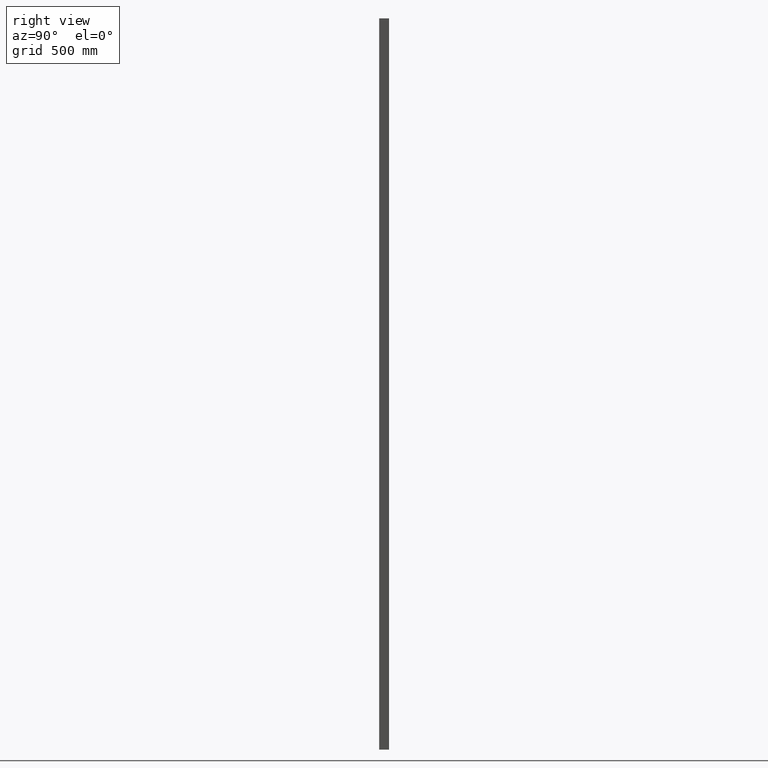
[diagram: clean part render]
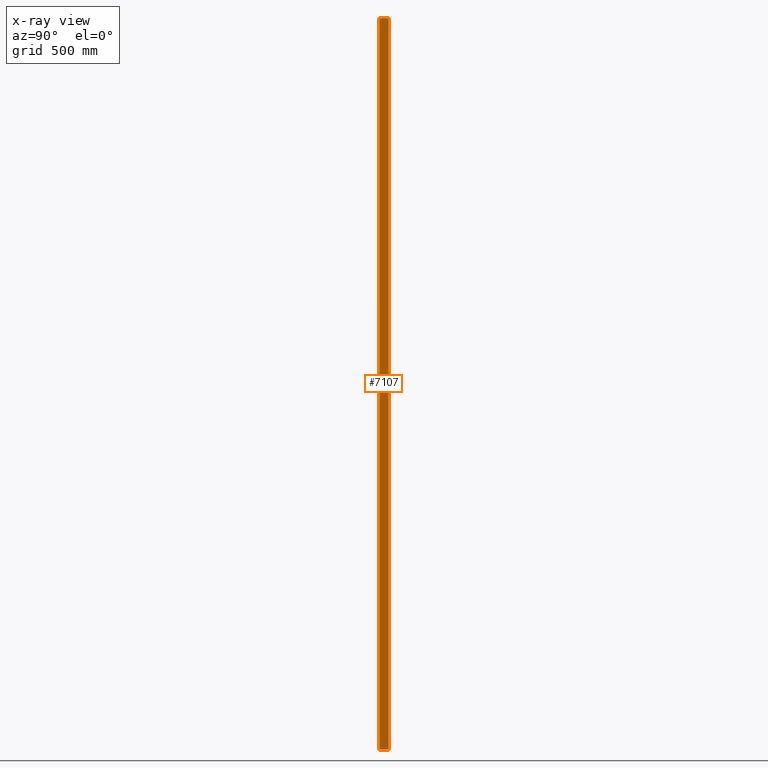
[diagram: x-ray — body ghosted, one internal face saturated and labeled with its STEP entity id]
A machine part, right view, then the same camera in x-ray: the body is ghosted and one INTERNAL B-rep face — a face not visible from any outside direction — is saturated and labeled: STEP entity #7107.
In plain terms, the highlighted planar face has unit normal (-1, -0, 0).
Its self-contained STEP definition (entity closure, byte-faithful):
#520 = CARTESIAN_POINT ( 'NONE',  ( 18.49999999999998934, 18.00000000000001066, 1500.000000000000000 ) ) ;
#745 = EDGE_CURVE ( 'NONE', #8939, #15894, #7769, .T. ) ;
#1737 = ORIENTED_EDGE ( 'NONE', *, *, #13706, .T. ) ;
#1837 = DIRECTION ( 'NONE',  ( -9.637352644315594010E-17, 1.000000000000000000, -0.000000000000000000 ) ) ;
#2684 = VERTEX_POINT ( 'NONE', #14638 ) ;
#2811 = ORIENTED_EDGE ( 'NONE', *, *, #745, .T. ) ;
#4390 = VECTOR ( 'NONE', #12746, 1000.000000000000000 ) ;
#4482 = CARTESIAN_POINT ( 'NONE',  ( 18.49999999999998934, 18.00000000000001066, 1500.000000000000000 ) ) ;
#5395 = AXIS2_PLACEMENT_3D ( 'NONE', #13721, #13962, #6373 ) ;
#5443 = ORIENTED_EDGE ( 'NONE', *, *, #12041, .F. ) ;
#5448 = CARTESIAN_POINT ( 'NONE',  ( 18.49999999999998934, 18.00000000000001066, 1500.000000000000000 ) ) ;
#6373 = DIRECTION ( 'NONE',  ( 9.637352644315594010E-17, -1.000000000000000000, 0.000000000000000000 ) ) ;
#6440 = LINE ( 'NONE', #7175, #14959 ) ;
#6534 = EDGE_LOOP ( 'NONE', ( #5443, #13937, #2811, #1737 ) ) ;
#7107 = ADVANCED_FACE ( 'NONE', ( #7477 ), #12656, .T. ) ;
#7175 = CARTESIAN_POINT ( 'NONE',  ( 18.49999999999998934, 18.00000000000001066, -1500.000000000000000 ) ) ;
#7477 = FACE_OUTER_BOUND ( 'NONE', #6534, .T. ) ;
#7672 = CARTESIAN_POINT ( 'NONE',  ( 18.49999999999998934, -18.00000000000000000, 1500.000000000000000 ) ) ;
#7769 = LINE ( 'NONE', #520, #11916 ) ;
#7946 = VECTOR ( 'NONE', #15568, 1000.000000000000000 ) ;
#8939 = VERTEX_POINT ( 'NONE', #16302 ) ;
#9124 = CARTESIAN_POINT ( 'NONE',  ( 18.49999999999998934, 18.00000000000001066, -1500.000000000000000 ) ) ;
#9907 = LINE ( 'NONE', #7672, #4390 ) ;
#11916 = VECTOR ( 'NONE', #1837, 1000.000000000000000 ) ;
#12041 = EDGE_CURVE ( 'NONE', #2684, #12685, #6440, .T. ) ;
#12656 = PLANE ( 'NONE',  #5395 ) ;
#12685 = VERTEX_POINT ( 'NONE', #9124 ) ;
#12746 = DIRECTION ( 'NONE',  ( -0.000000000000000000, -0.000000000000000000, -1.000000000000000000 ) ) ;
#13317 = LINE ( 'NONE', #5448, #7946 ) ;
#13706 = EDGE_CURVE ( 'NONE', #15894, #12685, #13317, .T. ) ;
#13721 = CARTESIAN_POINT ( 'NONE',  ( 18.49999999999998934, 18.00000000000001066, 1500.000000000000000 ) ) ;
#13937 = ORIENTED_EDGE ( 'NONE', *, *, #14401, .F. ) ;
#13962 = DIRECTION ( 'NONE',  ( -1.000000000000000000, -9.637352644315594010E-17, 0.000000000000000000 ) ) ;
#14401 = EDGE_CURVE ( 'NONE', #8939, #2684, #9907, .T. ) ;
#14638 = CARTESIAN_POINT ( 'NONE',  ( 18.49999999999998934, -18.00000000000000000, -1500.000000000000000 ) ) ;
#14959 = VECTOR ( 'NONE', #15953, 1000.000000000000000 ) ;
#15568 = DIRECTION ( 'NONE',  ( -0.000000000000000000, -0.000000000000000000, -1.000000000000000000 ) ) ;
#15894 = VERTEX_POINT ( 'NONE', #4482 ) ;
#15953 = DIRECTION ( 'NONE',  ( -9.637352644315594010E-17, 1.000000000000000000, -0.000000000000000000 ) ) ;
#16302 = CARTESIAN_POINT ( 'NONE',  ( 18.49999999999998934, -18.00000000000000000, 1500.000000000000000 ) ) ;